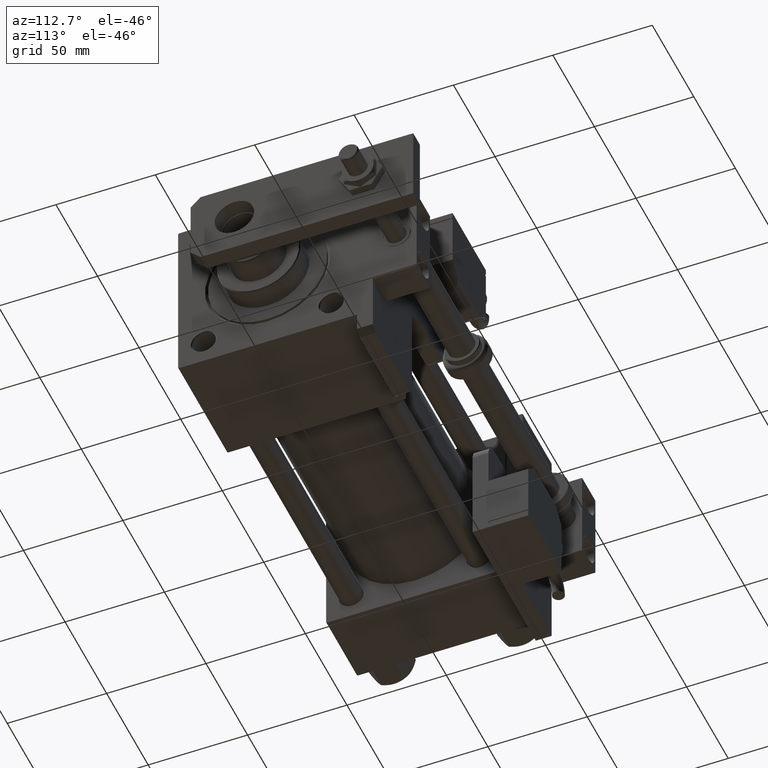
[diagram: clean part render]
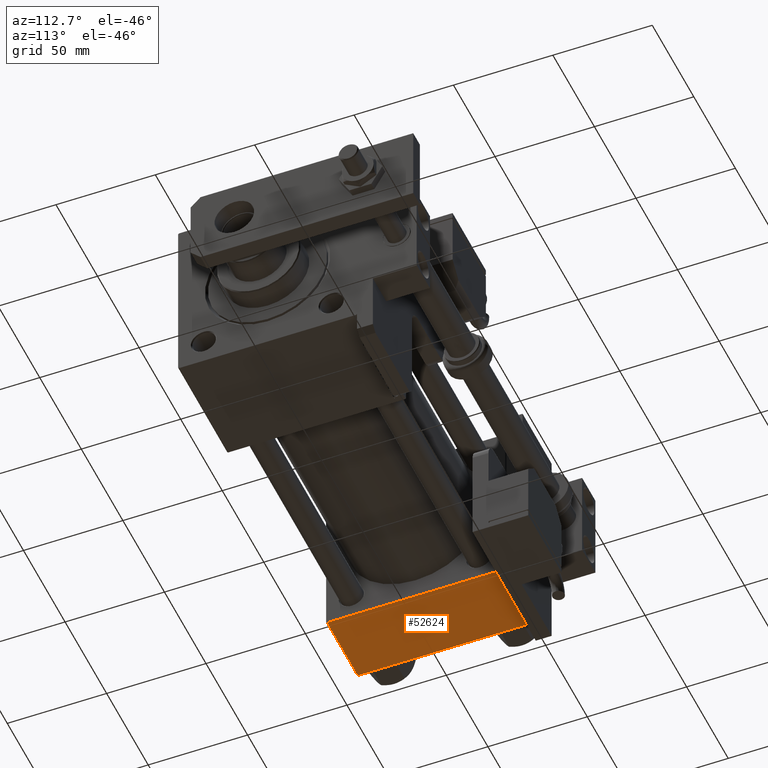
[diagram: same view with one face highlighted and labeled with its STEP entity id]
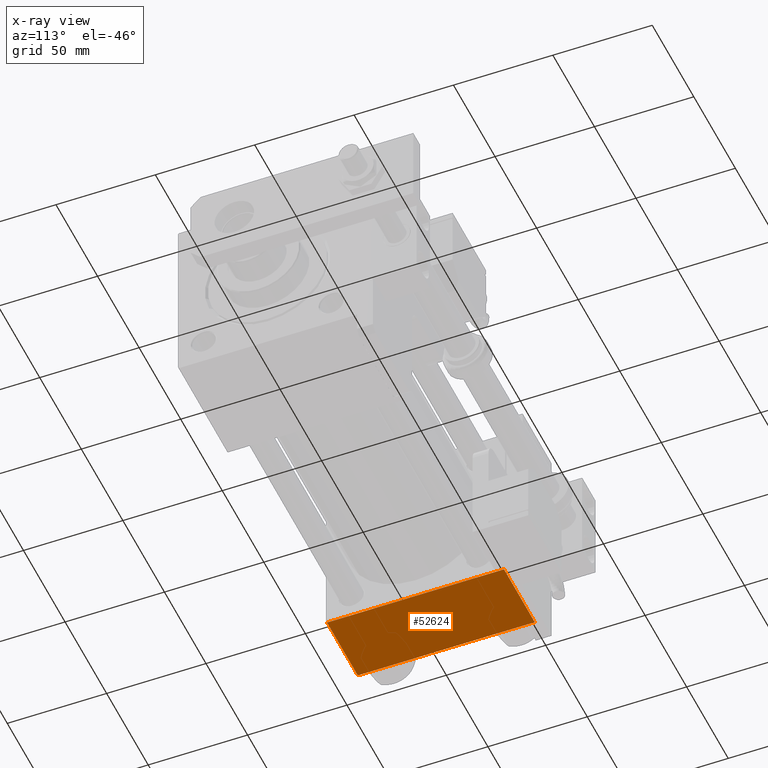
[diagram: x-ray of the same camera — body ghosted, the highlighted face saturated]
A machine part, auxiliary view. The second image highlights one B-rep face of the part: STEP entity #52624.
The next image is the same camera in x-ray: the body ghosted, the highlighted face saturated — about 0% of this face is hidden behind the body in this view.
In plain terms, the highlighted planar face has unit normal (0, 0, -1).
Its self-contained STEP definition (entity closure, byte-faithful):
#2236 = DIRECTION ( 'NONE',  ( -1.000000000000000000, 0.000000000000000000, 0.000000000000000000 ) ) ;
#2624 = VECTOR ( 'NONE', #30161, 1000.000000000000000 ) ;
#2972 = ORIENTED_EDGE ( 'NONE', *, *, #41031, .T. ) ;
#7961 = VECTOR ( 'NONE', #30559, 1000.000000000000000 ) ;
#8080 = EDGE_CURVE ( 'NONE', #27167, #21784, #40985, .T. ) ;
#8825 = CARTESIAN_POINT ( 'NONE',  ( 0.000000000000000000, 44.50000000000000000, -44.99999999999999289 ) ) ;
#10422 = DIRECTION ( 'NONE',  ( 0.000000000000000000, 1.000000000000000000, 7.709882115452478166E-17 ) ) ;
#10991 = ORIENTED_EDGE ( 'NONE', *, *, #30182, .F. ) ;
#11921 = VECTOR ( 'NONE', #2236, 1000.000000000000000 ) ;
#13445 = LINE ( 'NONE', #17697, #2624 ) ;
#14368 = CARTESIAN_POINT ( 'NONE',  ( 37.00000000000000000, 44.50000000000000000, -44.99999999999999289 ) ) ;
#15508 = PLANE ( 'NONE',  #32733 ) ;
#17697 = CARTESIAN_POINT ( 'NONE',  ( 0.000000000000000000, 45.00000000000000000, -44.99999999999999289 ) ) ;
#19353 = ORIENTED_EDGE ( 'NONE', *, *, #41134, .T. ) ;
#20025 = DIRECTION ( 'NONE',  ( 0.000000000000000000, 7.709882115452478166E-17, -1.000000000000000000 ) ) ;
#21784 = VERTEX_POINT ( 'NONE', #32476 ) ;
#23237 = CARTESIAN_POINT ( 'NONE',  ( 37.00000000000000000, 45.00000000000000000, -44.99999999999999289 ) ) ;
#23515 = VERTEX_POINT ( 'NONE', #14368 ) ;
#24573 = EDGE_LOOP ( 'NONE', ( #10991, #19353, #2972, #27325 ) ) ;
#27167 = VERTEX_POINT ( 'NONE', #38234 ) ;
#27325 = ORIENTED_EDGE ( 'NONE', *, *, #8080, .T. ) ;
#28255 = CARTESIAN_POINT ( 'NONE',  ( 0.000000000000000000, -44.49999999999997158, -45.00000000000000000 ) ) ;
#30161 = DIRECTION ( 'NONE',  ( 0.000000000000000000, -1.000000000000000000, -7.709882115452476934E-17 ) ) ;
#30182 = EDGE_CURVE ( 'NONE', #51132, #21784, #13445, .T. ) ;
#30559 = DIRECTION ( 'NONE',  ( 1.000000000000000000, 0.000000000000000000, 0.000000000000000000 ) ) ;
#32290 = LINE ( 'NONE', #23237, #51314 ) ;
#32476 = CARTESIAN_POINT ( 'NONE',  ( 0.000000000000000000, -44.49999999999994316, -45.00000000000000000 ) ) ;
#32733 = AXIS2_PLACEMENT_3D ( 'NONE', #50011, #20025, #10422 ) ;
#38234 = CARTESIAN_POINT ( 'NONE',  ( 37.00000000000000000, -44.49999999999994316, -45.00000000000000000 ) ) ;
#38490 = LINE ( 'NONE', #43009, #7961 ) ;
#40985 = LINE ( 'NONE', #28255, #11921 ) ;
#41031 = EDGE_CURVE ( 'NONE', #23515, #27167, #32290, .T. ) ;
#41134 = EDGE_CURVE ( 'NONE', #51132, #23515, #38490, .T. ) ;
#43009 = CARTESIAN_POINT ( 'NONE',  ( 37.00000000000000000, 44.50000000000000000, -44.99999999999999289 ) ) ;
#44194 = DIRECTION ( 'NONE',  ( 0.000000000000000000, -1.000000000000000000, -7.709882115452476934E-17 ) ) ;
#50011 = CARTESIAN_POINT ( 'NONE',  ( 37.00000000000000000, 45.00000000000000000, -44.99999999999999289 ) ) ;
#51132 = VERTEX_POINT ( 'NONE', #8825 ) ;
#51314 = VECTOR ( 'NONE', #44194, 1000.000000000000000 ) ;
#52624 = ADVANCED_FACE ( 'NONE', ( #54251 ), #15508, .T. ) ;
#54251 = FACE_OUTER_BOUND ( 'NONE', #24573, .T. ) ;